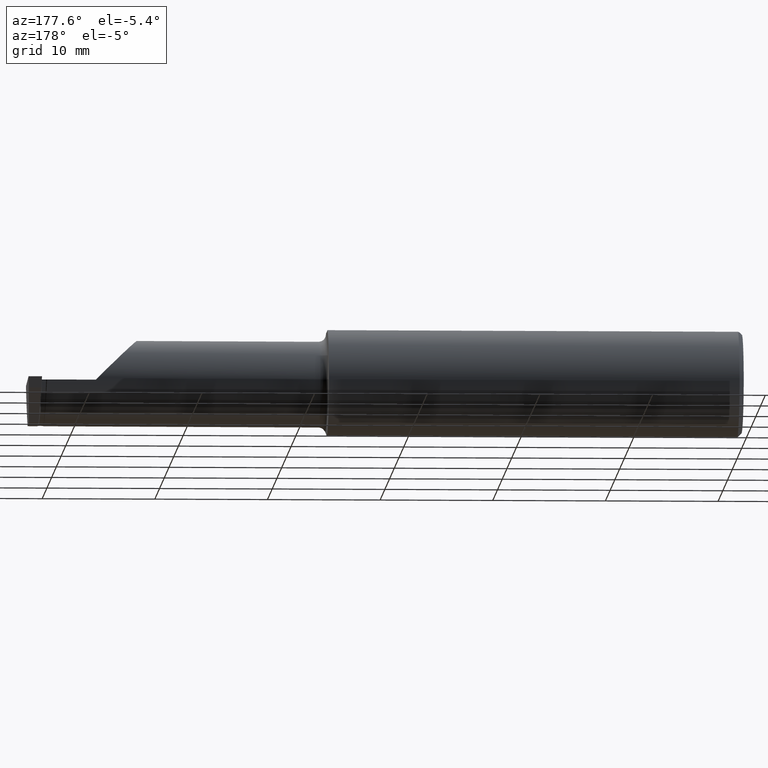
[diagram: clean part render]
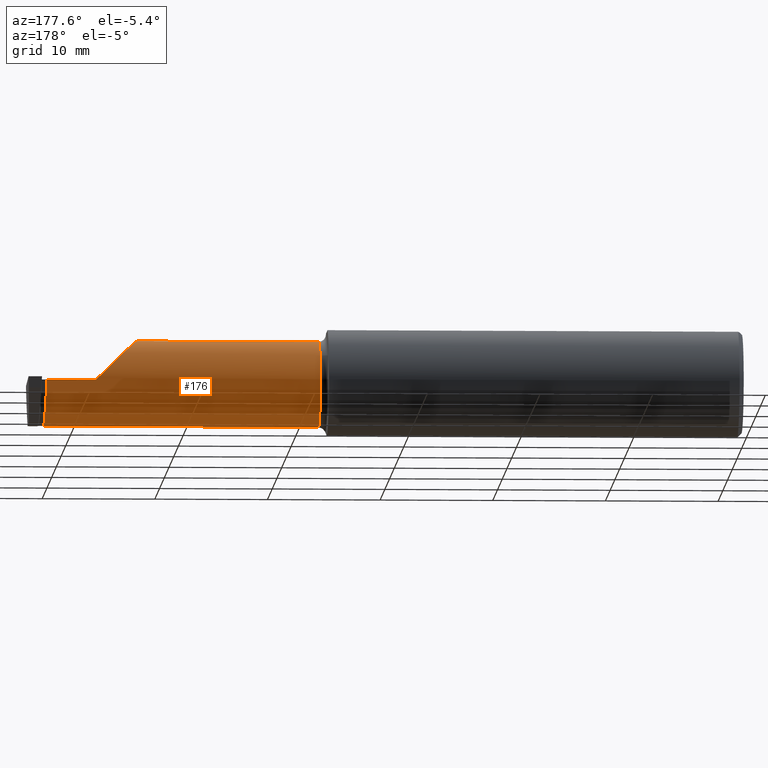
[diagram: same view with one face highlighted and labeled with its STEP entity id]
A machine part, auxiliary view. The second image highlights one B-rep face of the part: STEP entity #176.
In plain terms, the highlighted cylindrical surface (partial cylindrical patch) has radius 3.81 mm, axis along (-1, -0, -0).
Its self-contained STEP definition (entity closure, byte-faithful):
#26 = ORIENTED_EDGE ( 'NONE', *, *, #480, .F. ) ;
#46 = VERTEX_POINT ( 'NONE', #226 ) ;
#54 = CARTESIAN_POINT ( 'NONE',  ( 2.433584062737226716, 0.05145648337724674504, -0.06650224088322002902 ) ) ;
#58 = CARTESIAN_POINT ( 'NONE',  ( 2.435340364421190174, 0.01578456786426445102, -0.1129971908489509208 ) ) ;
#62 = VERTEX_POINT ( 'NONE', #800 ) ;
#89 = VERTEX_POINT ( 'NONE', #832 ) ;
#97 = CARTESIAN_POINT ( 'NONE',  ( 2.260000000000000231, 0.06665000000000002867, 2.939152317953647352E-17 ) ) ;
#108 = DIRECTION ( 'NONE',  ( -1.000000000000000000, -0.000000000000000000, -0.000000000000000000 ) ) ;
#131 = DIRECTION ( 'NONE',  ( -1.000000000000000000, -0.000000000000000000, -0.000000000000000000 ) ) ;
#138 = DIRECTION ( 'NONE',  ( 1.000000000000000000, 0.000000000000000000, 0.000000000000000000 ) ) ;
#147 = VECTOR ( 'NONE', #553, 39.37007874015748143 ) ;
#164 = CARTESIAN_POINT ( 'NONE',  ( 2.110000000000001208, 0.004517965644035767080, 0.1500000000000000222 ) ) ;
#171 = CARTESIAN_POINT ( 'NONE',  ( 2.110000000000001208, -0.08334999999999996578, 0.1499999999999999944 ) ) ;
#176 = ADVANCED_FACE ( 'NONE', ( #696 ), #280, .T. ) ;
#199 = CARTESIAN_POINT ( 'NONE',  ( 2.435625600551033276, 0.008070056630562290681, -0.1193229045214426604 ) ) ;
#205 = CARTESIAN_POINT ( 'NONE',  ( 2.436600921448349055, -0.04414771275002791345, -0.1461247665934806983 ) ) ;
#215 = LINE ( 'NONE', #915, #1017 ) ;
#217 = CIRCLE ( 'NONE', #414, 0.1499999999999999944 ) ;
#226 = CARTESIAN_POINT ( 'NONE',  ( 2.431000000000559602, 0.06664999999944079545, 9.135099441658725058E-18 ) ) ;
#272 = ORIENTED_EDGE ( 'NONE', *, *, #756, .T. ) ;
#280 = CYLINDRICAL_SURFACE ( 'NONE', #739, 0.1499999999999999944 ) ;
#366 = LINE ( 'NONE', #453, #985 ) ;
#414 = AXIS2_PLACEMENT_3D ( 'NONE', #661, #813, #592 ) ;
#453 = CARTESIAN_POINT ( 'NONE',  ( 1.450000000000000178, -0.08334999999999995191, -0.1499999999999999944 ) ) ;
#480 = EDGE_CURVE ( 'NONE', #89, #1027, #217, .T. ) ;
#488 = LINE ( 'NONE', #562, #147 ) ;
#509 = CARTESIAN_POINT ( 'NONE',  ( 1.474999999999999867, -0.08334999999999995191, -0.1499999999999999944 ) ) ;
#529 = CARTESIAN_POINT ( 'NONE',  ( 2.436802821150035214, -0.08335000000000182541, -0.1499999999999999944 ) ) ;
#545 = ORIENTED_EDGE ( 'NONE', *, *, #855, .T. ) ;
#553 = DIRECTION ( 'NONE',  ( -1.000000000000000000, -0.000000000000000000, -0.000000000000000000 ) ) ;
#562 = CARTESIAN_POINT ( 'NONE',  ( 1.450000000000000178, -0.08334999999999996578, 0.1499999999999999944 ) ) ;
#592 = DIRECTION ( 'NONE',  ( 0.000000000000000000, 0.000000000000000000, 1.000000000000000000 ) ) ;
#597 = DIRECTION ( 'NONE',  ( 0.000000000000000000, 0.000000000000000000, 1.000000000000000000 ) ) ;
#599 = EDGE_LOOP ( 'NONE', ( #822, #721, #26, #957, #272, #545 ) ) ;
#627 = CARTESIAN_POINT ( 'NONE',  ( 2.434778616767433235, 0.02964324779967103876, -0.09913906211514628142 ) ) ;
#661 = CARTESIAN_POINT ( 'NONE',  ( 1.474999999999999867, -0.08334999999999996578, 0.000000000000000000 ) ) ;
#665 = CARTESIAN_POINT ( 'NONE',  ( 2.172132034355964691, 0.06665000000000001479, 0.08786796564403576149 ) ) ;
#696 = FACE_OUTER_BOUND ( 'NONE', #599, .T. ) ;
#703 = VERTEX_POINT ( 'NONE', #951 ) ;
#704 = CARTESIAN_POINT ( 'NONE',  ( 2.436195387879535712, -0.01680786726406478457, -0.1347941439950575415 ) ) ;
#721 = ORIENTED_EDGE ( 'NONE', *, *, #839, .T. ) ;
#739 = AXIS2_PLACEMENT_3D ( 'NONE', #857, #131, #597 ) ;
#756 = EDGE_CURVE ( 'NONE', #62, #703, #925, .T. ) ;
#759 = CARTESIAN_POINT ( 'NONE',  ( 2.432485381520229861, 0.06268190983463753363, -0.03944648681653527972 ) ) ;
#777 = B_SPLINE_CURVE_WITH_KNOTS ( 'NONE', 3,
 ( #864, #943, #759, #54, #1022, #787, #627, #58, #199, #835, #704, #205, #870, #529 ),
 .UNSPECIFIED., .F., .F.,
 ( 4, 2, 2, 2, 2, 2, 4 ),
 ( 4.192499455460400819E-12, 0.001502808815337298987, 0.002254213220909699091, 0.003005617626482098761, 0.003757022032054498865, 0.004508426437626898535, 0.006011235248771699610 ),
 .UNSPECIFIED. ) ;
#787 = CARTESIAN_POINT ( 'NONE',  ( 2.434501685452721720, 0.03584079214511746991, -0.09159665080326949427 ) ) ;
#791 = CARTESIAN_POINT ( 'NONE',  ( 2.436802821150035214, -0.08335000000000182541, -0.1499999999999999944 ) ) ;
#792 = EDGE_CURVE ( 'NONE', #46, #863, #777, .T. ) ;
#800 = CARTESIAN_POINT ( 'NONE',  ( 2.110000000000001208, -0.08334999999999996578, 0.1499999999999999944 ) ) ;
#813 = DIRECTION ( 'NONE',  ( -1.000000000000000000, -0.000000000000000000, -0.000000000000000000 ) ) ;
#822 = ORIENTED_EDGE ( 'NONE', *, *, #792, .T. ) ;
#832 = CARTESIAN_POINT ( 'NONE',  ( 1.474999999999999867, -0.08334999999999996578, 0.1499999999999999944 ) ) ;
#835 = CARTESIAN_POINT ( 'NONE',  ( 2.436047627063496090, -0.008191913527209526355, -0.1301800458423527929 ) ) ;
#839 = EDGE_CURVE ( 'NONE', #863, #1027, #366, .T. ) ;
#855 = EDGE_CURVE ( 'NONE', #703, #46, #215, .T. ) ;
#857 = CARTESIAN_POINT ( 'NONE',  ( 1.450000000000000178, -0.08334999999999996578, 0.000000000000000000 ) ) ;
#863 = VERTEX_POINT ( 'NONE', #791 ) ;
#864 = CARTESIAN_POINT ( 'NONE',  ( 2.431000000000559602, 0.06664999999944079545, 9.135099441658725058E-18 ) ) ;
#870 = CARTESIAN_POINT ( 'NONE',  ( 2.436823271145445613, -0.06360485849427219285, -0.1500000000000002442 ) ) ;
#915 = CARTESIAN_POINT ( 'NONE',  ( 1.450000000000000178, 0.06665000000000002867, 1.285879139104721472E-16 ) ) ;
#925 =( BOUNDED_CURVE ( )  B_SPLINE_CURVE ( 3, ( #171, #164, #665, #97 ),
 .UNSPECIFIED., .F., .F. ) 
 B_SPLINE_CURVE_WITH_KNOTS ( ( 4, 4 ),
 ( 0.000000000000000000, 1.570796326794896558 ),
 .UNSPECIFIED. ) 
 CURVE ( )  GEOMETRIC_REPRESENTATION_ITEM ( )  RATIONAL_B_SPLINE_CURVE ( ( 1.000000000000000000, 0.8047378541243649375, 0.8047378541243649375, 1.000000000000000000 ) ) 
 REPRESENTATION_ITEM ( '' )  );
#943 = CARTESIAN_POINT ( 'NONE',  ( 2.431759762771713795, 0.06665000002185876571, -0.01979751608576355362 ) ) ;
#945 = EDGE_CURVE ( 'NONE', #62, #89, #488, .T. ) ;
#951 = CARTESIAN_POINT ( 'NONE',  ( 2.260000000000000231, 0.06665000000000002867, 2.939152317953647352E-17 ) ) ;
#957 = ORIENTED_EDGE ( 'NONE', *, *, #945, .F. ) ;
#985 = VECTOR ( 'NONE', #108, 39.37007874015748143 ) ;
#1017 = VECTOR ( 'NONE', #138, 39.37007874015748143 ) ;
#1022 = CARTESIAN_POINT ( 'NONE',  ( 2.433917707009779718, 0.04676326156910487475, -0.07527901788949153961 ) ) ;
#1027 = VERTEX_POINT ( 'NONE', #509 ) ;